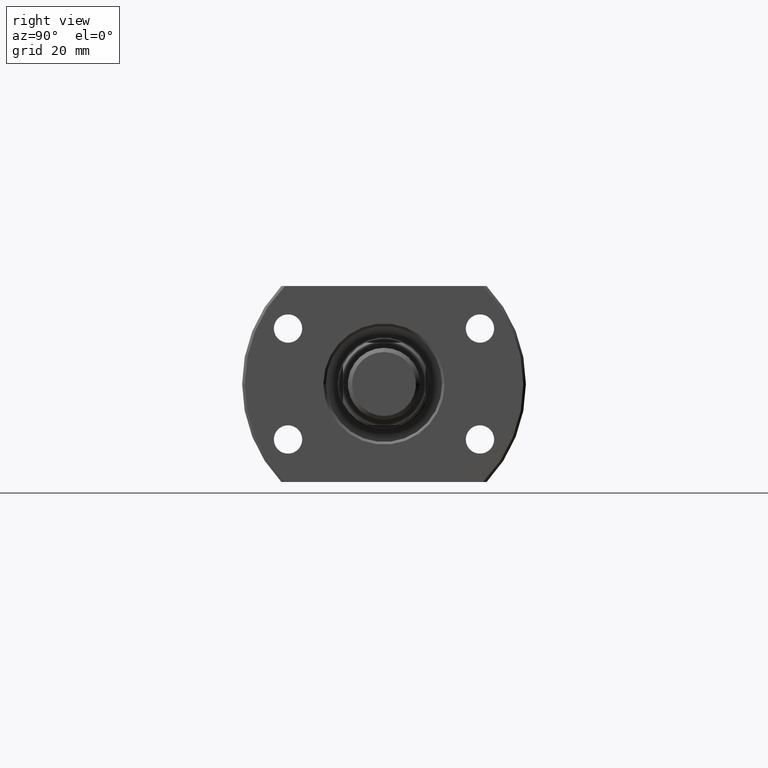
[diagram: clean part render]
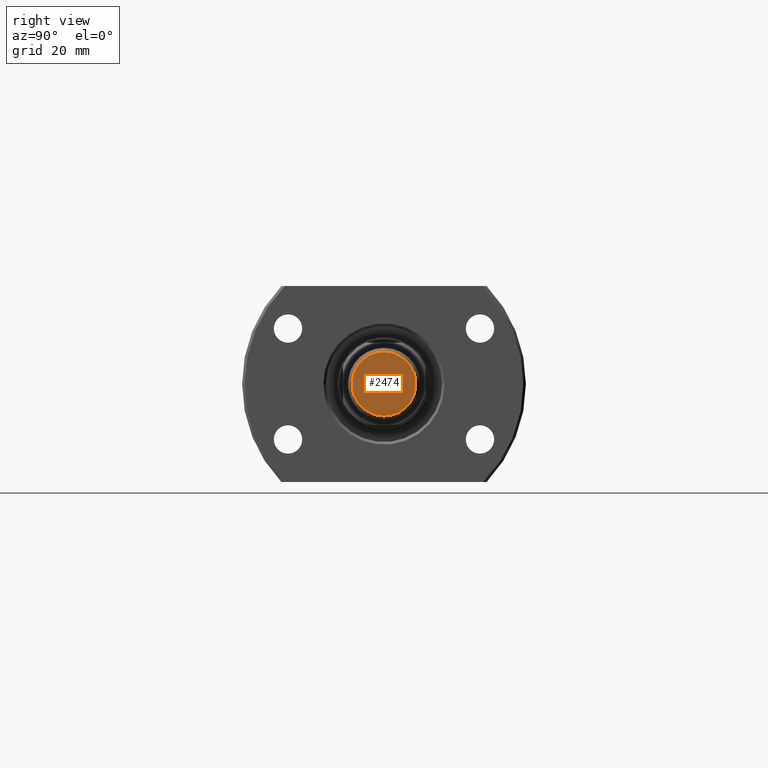
[diagram: same view with one face highlighted and labeled with its STEP entity id]
A machine part, right view. The second image highlights one B-rep face of the part: STEP entity #2474.
In plain terms, the highlighted planar face has unit normal (-1, -0, 0).
Its self-contained STEP definition (entity closure, byte-faithful):
#218 = CARTESIAN_POINT ( 'NONE',  ( 0.000000000000000000, 0.000000000000000000, 0.000000000000000000 ) ) ;
#430 = CARTESIAN_POINT ( 'NONE',  ( 0.000000000000000000, 0.000000000000000000, 0.000000000000000000 ) ) ;
#822 = CARTESIAN_POINT ( 'NONE',  ( -6.199999999999999289, 8.082668874372528061E-16, 0.000000000000000000 ) ) ;
#866 = VERTEX_POINT ( 'NONE', #822 ) ;
#1361 = DIRECTION ( 'NONE',  ( -0.000000000000000000, -0.000000000000000000, -1.000000000000000000 ) ) ;
#1621 = CIRCLE ( 'NONE', #2756, 6.199999999999999289 ) ;
#1679 = PLANE ( 'NONE',  #1914 ) ;
#1788 = VERTEX_POINT ( 'NONE', #2092 ) ;
#1914 = AXIS2_PLACEMENT_3D ( 'NONE', #218, #2846, #1923 ) ;
#1923 = DIRECTION ( 'NONE',  ( 1.000000000000000000, 0.000000000000000000, -0.000000000000000000 ) ) ;
#2092 = CARTESIAN_POINT ( 'NONE',  ( 6.199999999999999289, 0.000000000000000000, 0.000000000000000000 ) ) ;
#2098 = DIRECTION ( 'NONE',  ( -0.000000000000000000, -0.000000000000000000, -1.000000000000000000 ) ) ;
#2122 = EDGE_CURVE ( 'NONE', #866, #1788, #1621, .T. ) ;
#2174 = FACE_OUTER_BOUND ( 'NONE', #2238, .T. ) ;
#2238 = EDGE_LOOP ( 'NONE', ( #2606, #2437 ) ) ;
#2276 = DIRECTION ( 'NONE',  ( 1.000000000000000000, 0.000000000000000000, 0.000000000000000000 ) ) ;
#2373 = EDGE_CURVE ( 'NONE', #1788, #866, #3490, .T. ) ;
#2437 = ORIENTED_EDGE ( 'NONE', *, *, #2122, .T. ) ;
#2474 = ADVANCED_FACE ( 'NONE', ( #2174 ), #1679, .F. ) ;
#2606 = ORIENTED_EDGE ( 'NONE', *, *, #2373, .T. ) ;
#2756 = AXIS2_PLACEMENT_3D ( 'NONE', #3078, #1361, #2276 ) ;
#2846 = DIRECTION ( 'NONE',  ( 0.000000000000000000, 0.000000000000000000, 1.000000000000000000 ) ) ;
#3078 = CARTESIAN_POINT ( 'NONE',  ( 0.000000000000000000, 0.000000000000000000, 0.000000000000000000 ) ) ;
#3490 = CIRCLE ( 'NONE', #3542, 6.199999999999999289 ) ;
#3542 = AXIS2_PLACEMENT_3D ( 'NONE', #430, #2098, #3617 ) ;
#3617 = DIRECTION ( 'NONE',  ( 1.000000000000000000, 0.000000000000000000, 0.000000000000000000 ) ) ;